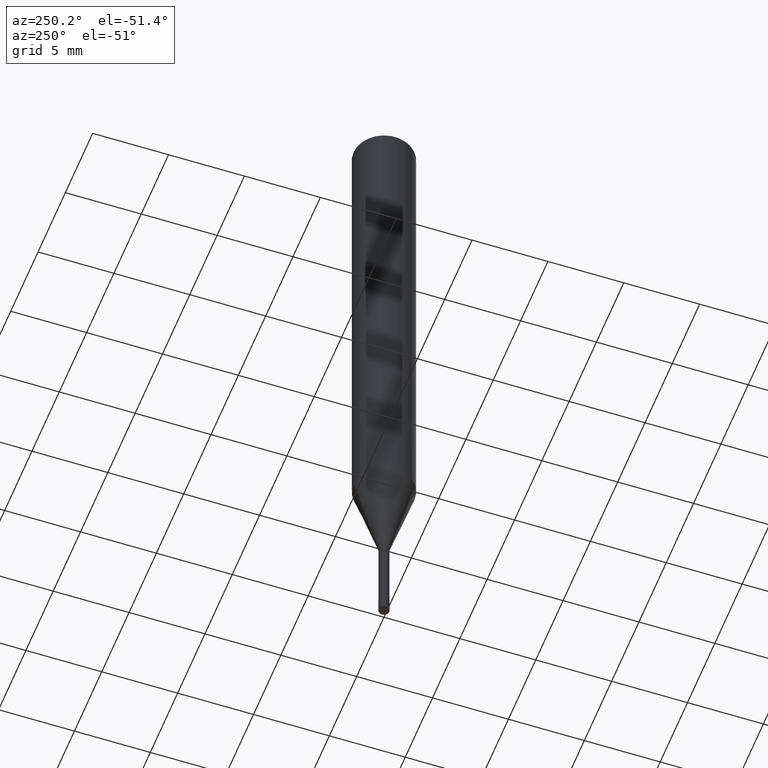
[diagram: clean part render]
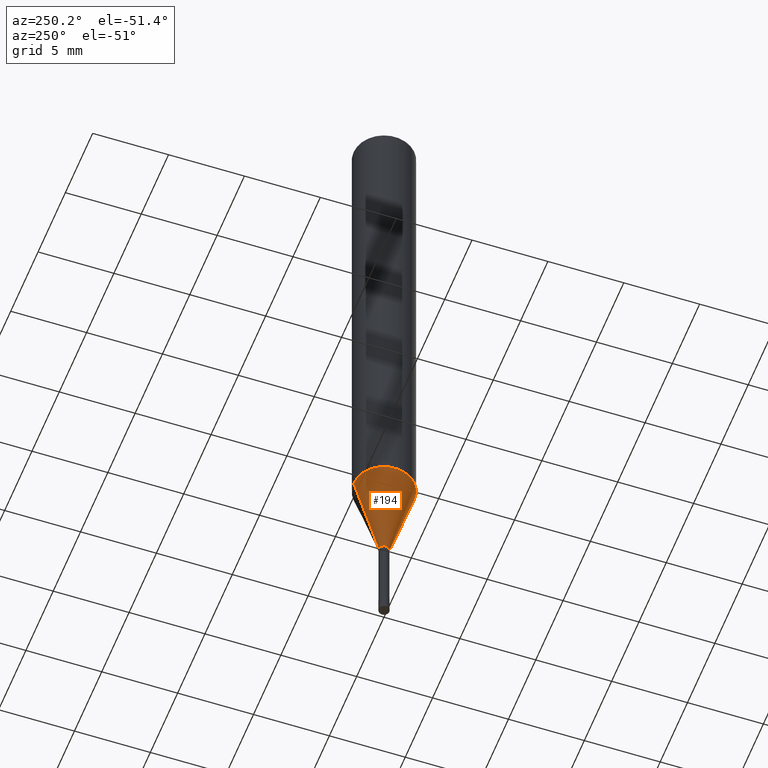
[diagram: same view with one face highlighted and labeled with its STEP entity id]
A machine part, auxiliary view. The second image highlights one B-rep face of the part: STEP entity #194.
In plain terms, the highlighted conical surface has half-angle 16 deg.
Its self-contained STEP definition (entity closure, byte-faithful):
#94=VERTEX_POINT('',#231);
#108=EDGE_CURVE('',#176,#146,#246,.T.);
#116=EDGE_CURVE('',#94,#146,#254,.T.);
#122=EDGE_CURVE('',#148,#94,#260,.T.);
#146=VERTEX_POINT('',#288);
#148=VERTEX_POINT('',#290);
#176=VERTEX_POINT('',#320);
#184=EDGE_CURVE('',#176,#148,#329,.T.);
#194=ADVANCED_FACE('',(#342),#343,.T.);
#231=CARTESIAN_POINT('',(0.0,1.99995,-33.211));
#246=CIRCLE('',#397,0.33995);
#254=LINE('',#406,#407);
#260=CIRCLE('',#418,1.99995);
#288=CARTESIAN_POINT('',(0.0,0.33995,-39.0));
#290=CARTESIAN_POINT('',(2.44915147732706E-016,-1.99995,-33.211));
#320=CARTESIAN_POINT('',(4.16304929981917E-017,-0.33995,-39.0));
#329=LINE('',#502,#503);
#342=FACE_OUTER_BOUND('',#517,.T.);
#343=CONICAL_SURFACE('',#518,1.16995,0.279257622355071);
#397=AXIS2_PLACEMENT_3D('',#558,#559,#560);
#406=CARTESIAN_POINT('',(-1.43272820365449E-016,1.16995,-36.1055));
#407=VECTOR('',#565,1.0);
#418=AXIS2_PLACEMENT_3D('',#568,#569,#570);
#502=CARTESIAN_POINT('',(1.43272820365449E-016,-1.16995,-36.1055));
#503=VECTOR('',#649,1.0);
#517=EDGE_LOOP('',(#670,#671,#672,#673));
#518=AXIS2_PLACEMENT_3D('',#674,#675,#676);
#558=CARTESIAN_POINT('',(0.0,0.0,-39.0));
#559=DIRECTION('',(0.0,0.0,-1.0));
#560=DIRECTION('',(0.0,1.0,0.0));
#565=DIRECTION('',(3.37553074882733E-017,-0.275642106403519,-0.961260333716851));
#568=CARTESIAN_POINT('',(0.0,0.0,-33.211));
#569=DIRECTION('',(0.0,0.0,-1.0));
#570=DIRECTION('',(0.0,1.0,0.0));
#649=DIRECTION('',(3.37553074882733E-017,-0.275642106403519,0.961260333716851));
#670=ORIENTED_EDGE('',*,*,#116,.T.);
#671=ORIENTED_EDGE('',*,*,#108,.F.);
#672=ORIENTED_EDGE('',*,*,#184,.T.);
#673=ORIENTED_EDGE('',*,*,#122,.T.);
#674=CARTESIAN_POINT('',(0.0,0.0,-36.1055));
#675=DIRECTION('',(-0.0,-0.0,1.0));
#676=DIRECTION('',(0.0,1.0,0.0));